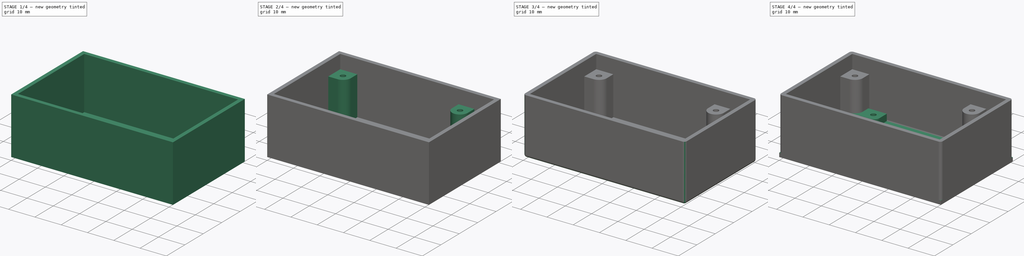
[diagram: build sequence overview — one tinted view per stage of 4, left to right]
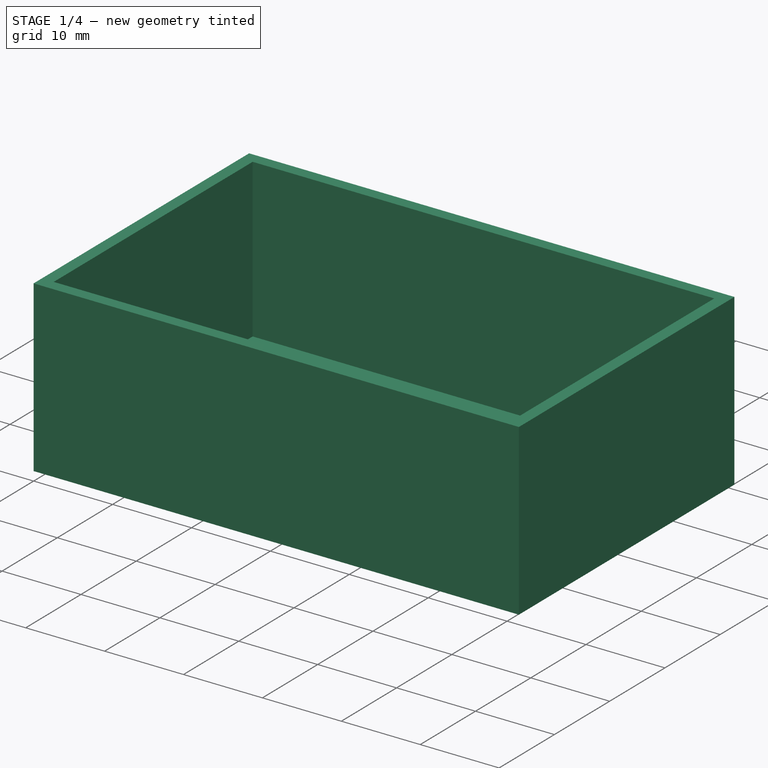
[diagram: stage 1 of 4 — iso view after this stage's code; geometry added in this stage tinted green]
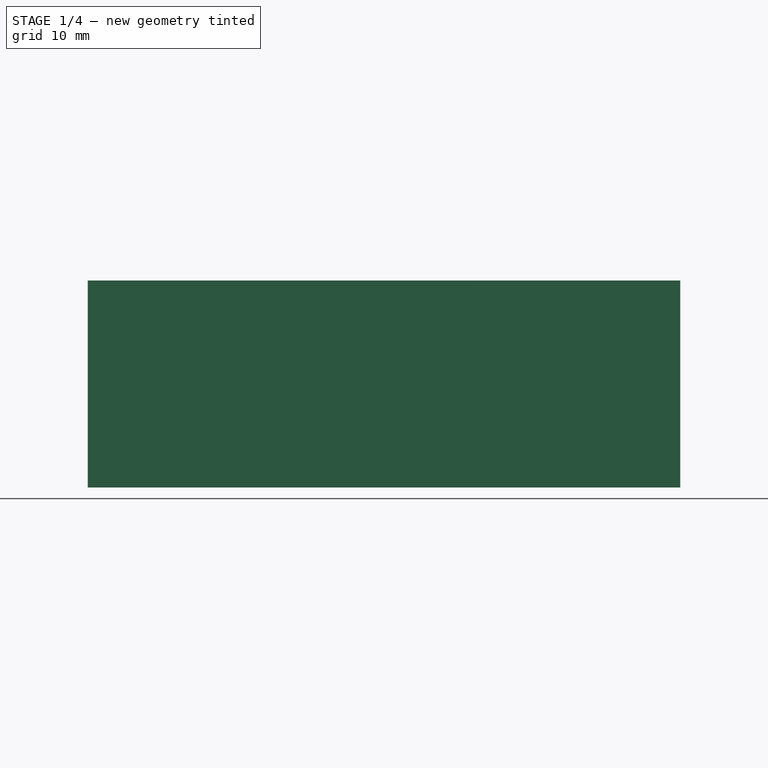
[diagram: stage 1 of 4 — front view after this stage's code; geometry added in this stage tinted green]
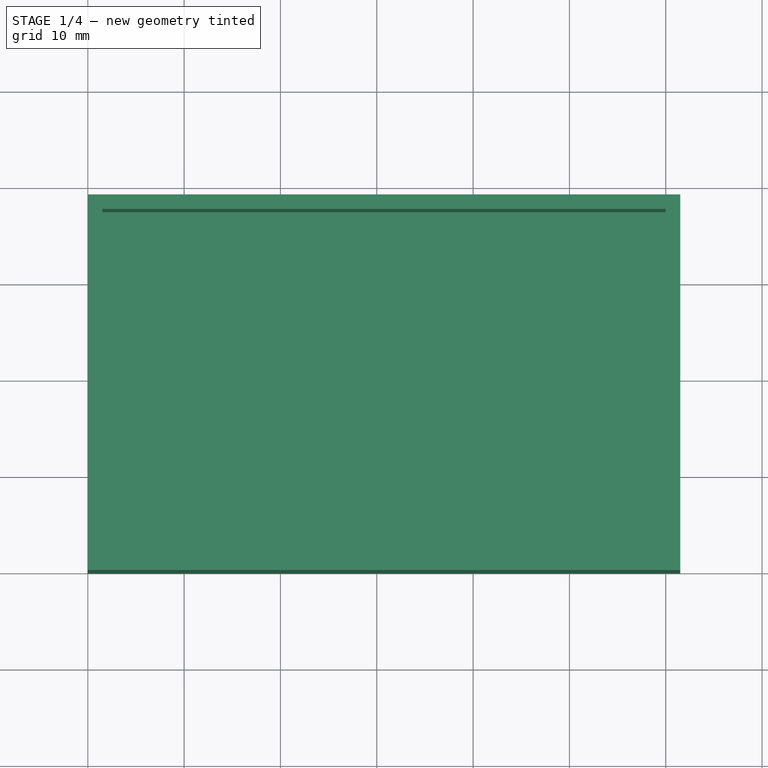
[diagram: stage 1 of 4 — top view after this stage's code; geometry added in this stage tinted green]
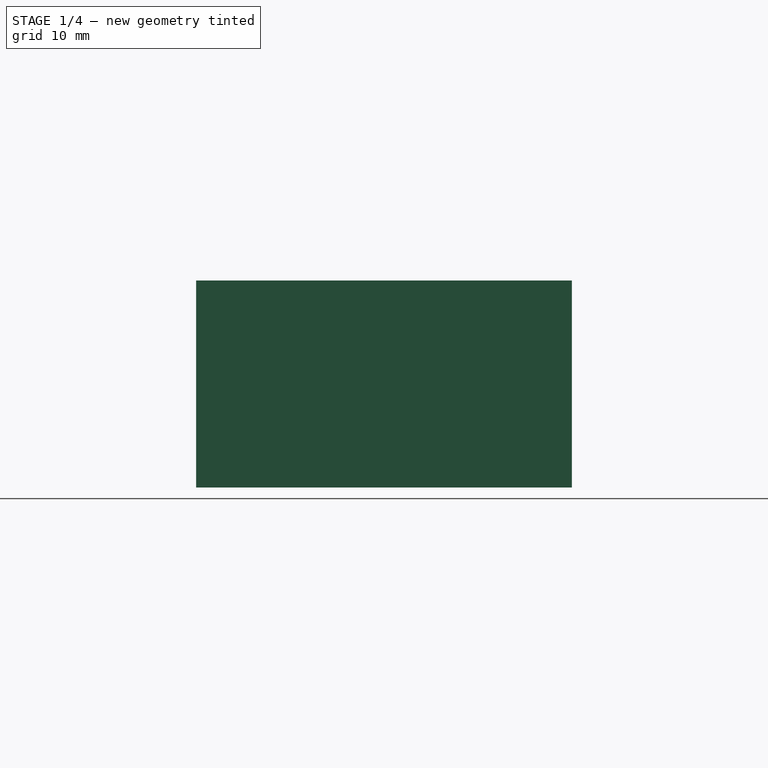
[diagram: stage 1 of 4 — right view after this stage's code; geometry added in this stage tinted green]
FCSTD DOCUMENT  (FreeCAD 0.17R13519 (Git))
Label: MH-Z14A-case-top
License: All rights reserved
LicenseURL: http://en.wikipedia.org/wiki/All_rights_reserved
objects: Sketcher::SketchObject×5, PartDesign::Pad×3, PartDesign::Pocket×2, PartDesign::LinearPattern×2, PartDesign::Fillet×2, Spreadsheet::Sheet×1, Part::FeaturePython×1, PartDesign::MultiTransform×1, PartDesign::Body×1
note: 22 computed .brp shape members not serialized (recipe doc carries the construction recipe); baked Part::Feature solids carry a one-line shape summary decoded from their .brp

FEATURE [Sketcher::SketchObject] Sketch
  MapMode = 5
  Support = -> [XY_Plane]
  expr: Constraints[10] = vals.board_h + 2 * vals.board_tolerance + 2 * vals.case_thickness
  expr: Constraints[9] = vals.board_w + 2 * vals.board_tolerance + 2 * vals.case_thickness
  sketch-geometry (4):
    g0: LineSegment StartX=0 StartY=0 StartZ=0 EndX=61.5 EndY=0 EndZ=0
    g1: LineSegment StartX=61.5 StartY=0 StartZ=0 EndX=61.5 EndY=39 EndZ=0
    g2: LineSegment StartX=61.5 StartY=39 StartZ=0 EndX=0 EndY=39 EndZ=0
    g3: LineSegment StartX=0 StartY=39 StartZ=0 EndX=0 EndY=0 EndZ=0
  constraints (11):
    c: Coincident(g0,g1)
    c: Coincident(g1,g2)
    c: Coincident(g2,g3)
    c: Coincident(g3,g0)
    c: Horizontal(g0)
    c: Horizontal(g2)
    c: Vertical(g1)
    c: Vertical(g3)
    c: Coincident(g0,g-1)
    c: DistanceX(g0,g0) = 61.5
    c: DistanceY(g1,g1) = 39
FEATURE [PartDesign::Pad] Pad
  Length = 1.5
  Length2 = 100
  Profile = -> Sketch
  Type = 0
  expr: Length = vals.case_thickness
FEATURE [Sketcher::SketchObject] Sketch001
  ExternalGeometry = -> [Pad]
  MapMode = 5
  Placement = pos=(0,0,1.5) rot=(0,0,1;0rad)
  Support = -> [Pad]
  expr: Constraints[11] = vals.case_thickness
  expr: Constraints[10] = vals.case_thickness
  expr: Constraints[9] = vals.case_thickness
  expr: Constraints[8] = vals.case_thickness
  sketch-geometry (8):
    g0: LineSegment StartX=1.5 StartY=37.5 StartZ=0 EndX=60 EndY=37.5 EndZ=0
    g1: LineSegment StartX=60 StartY=37.5 StartZ=0 EndX=60 EndY=1.5 EndZ=0
    g2: LineSegment StartX=60 StartY=1.5 StartZ=0 EndX=1.5 EndY=1.5 EndZ=0
    g3: LineSegment StartX=1.5 StartY=1.5 StartZ=0 EndX=1.5 EndY=37.5 EndZ=0
    g4: LineSegment StartX=0 StartY=0 StartZ=0 EndX=61.5 EndY=0 EndZ=0
    g5: LineSegment StartX=61.5 StartY=0 StartZ=0 EndX=61.5 EndY=39 EndZ=0
    g6: LineSegment StartX=61.5 StartY=39 StartZ=0 EndX=0 EndY=39 EndZ=0
    g7: LineSegment StartX=0 StartY=39 StartZ=0 EndX=0 EndY=0 EndZ=0
  constraints (22):
    c: Coincident(g0,g1)
    c: Coincident(g1,g2)
    c: Coincident(g2,g3)
    c: Coincident(g3,g0)
    c: Horizontal(g0)
    c: Horizontal(g2)
    c: Vertical(g1)
    c: Vertical(g3)
    c: DistanceX(g-1,g2) = 1.5
    c: DistanceX(g0,g-3) = 1.5
    c: DistanceY(g-1,g2) = 1.5
    c: DistanceY(g0,g-3) = 1.5
    c: Coincident(g4,g5)
    c: Coincident(g5,g6)
    c: Coincident(g6,g7)
    c: Coincident(g7,g4)
    c: Horizontal(g4)
    c: Horizontal(g6)
    c: Vertical(g5)
    c: Vertical(g7)
    c: Coincident(g4,g-1)
    c: Coincident(g5,g-3)
FEATURE [PartDesign::Pad] Pad001
  BaseFeature = -> Pad
  Length = 20
  Length2 = 100
  Profile = -> Sketch001
  Type = 0
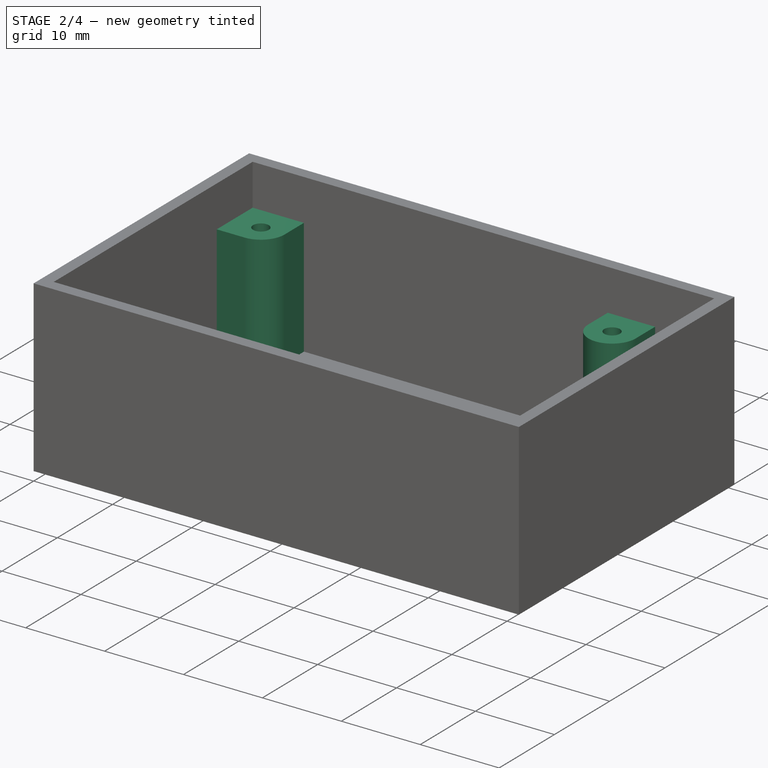
[diagram: stage 2 of 4 — iso view after this stage's code; geometry added in this stage tinted green]
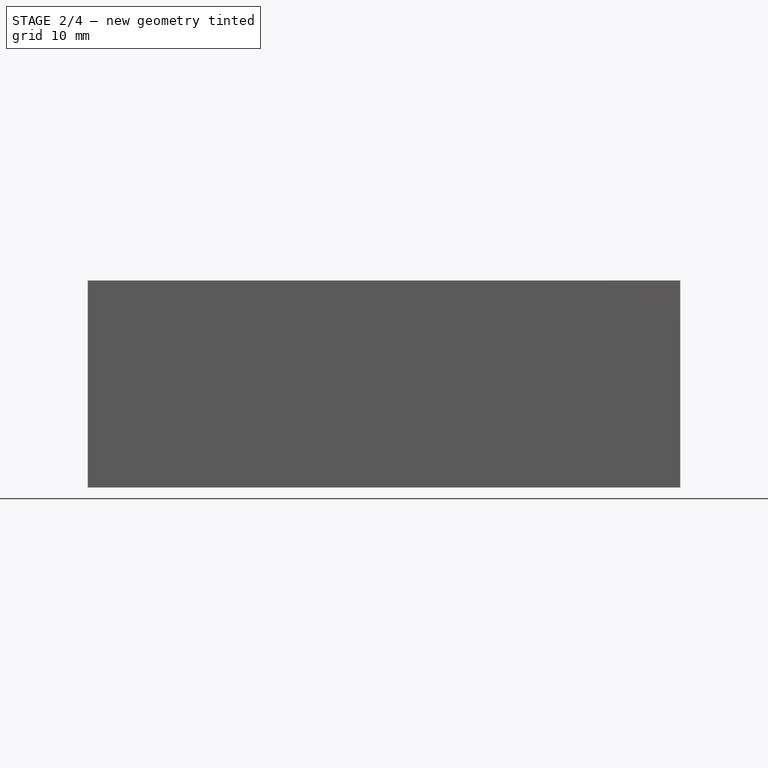
[diagram: stage 2 of 4 — front view after this stage's code; geometry added in this stage tinted green]
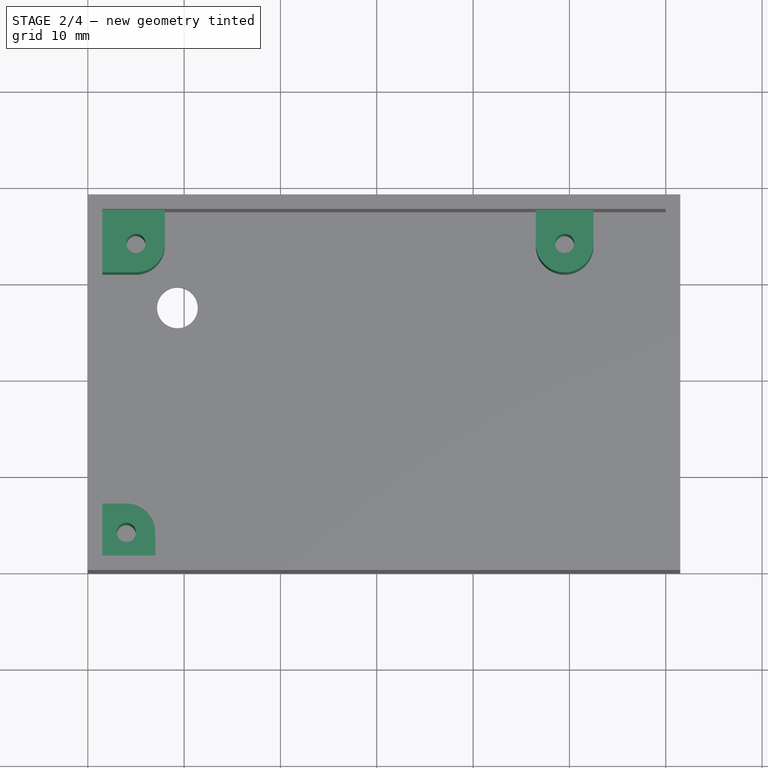
[diagram: stage 2 of 4 — top view after this stage's code; geometry added in this stage tinted green]
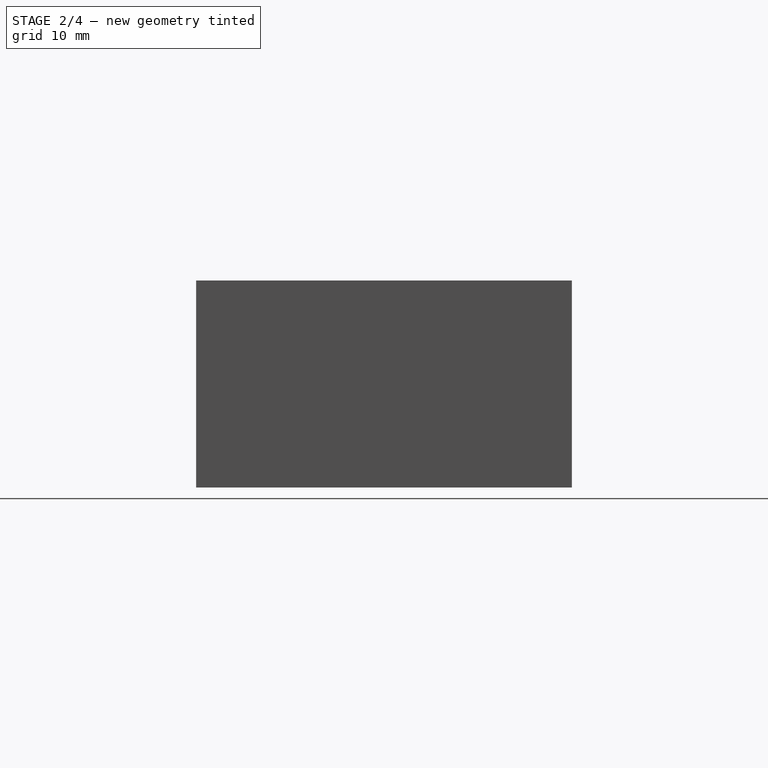
[diagram: stage 2 of 4 — right view after this stage's code; geometry added in this stage tinted green]
FEATURE [Sketcher::SketchObject] Sketch002
  ExternalGeometry = -> [Pad001]
  MapMode = 5
  Placement = pos=(0,0,1.5) rot=(0,0,1;0rad)
  Support = -> [Pad001]
  expr: Constraints[7] = vals.board_tolerance
  expr: Constraints[8] = vals.board_tolerance
  expr: Constraints[9] = vals.board_h
  expr: Constraints[10] = vals.board_w
  sketch-geometry (21):
    g0: LineSegment [constr] StartX=2 StartY=37 StartZ=0 EndX=59.5 EndY=37 EndZ=0
    g1: LineSegment [constr] StartX=59.5 StartY=37 StartZ=0 EndX=59.5 EndY=2 EndZ=0
    g2: LineSegment [constr] StartX=59.5 StartY=2 StartZ=0 EndX=2 EndY=2 EndZ=0
    g3: LineSegment [constr] StartX=2 StartY=2 StartZ=0 EndX=2 EndY=37 EndZ=0
    g4: Circle CenterX=49.5 CenterY=34 CenterZ=0 NormalX=0 NormalY=0 NormalZ=1 AngleXU=0 Radius=1
    g5: Circle CenterX=5 CenterY=34 CenterZ=0 NormalX=0 NormalY=0 NormalZ=1 AngleXU=0 Radius=1
    g6: Circle CenterX=4 CenterY=4 CenterZ=0 NormalX=0 NormalY=0 NormalZ=1 AngleXU=0 Radius=1
    g7: ArcOfCircle CenterX=49.5 CenterY=34 CenterZ=0 NormalX=0 NormalY=0 NormalZ=1 AngleXU=0 Radius=3 StartAngle=3.14159 EndAngle=6.28319
    g8: LineSegment StartX=46.5 StartY=34 StartZ=0 EndX=46.5 EndY=37.5 EndZ=0
    g9: LineSegment StartX=52.5 StartY=34 StartZ=0 EndX=52.5 EndY=37.5 EndZ=0
    g10: LineSegment StartX=46.5 StartY=37.5 StartZ=0 EndX=52.5 EndY=37.5 EndZ=0
    g11: ArcOfCircle CenterX=5 CenterY=34 CenterZ=0 NormalX=0 NormalY=0 NormalZ=1 AngleXU=0 Radius=3 StartAngle=4.71239 EndAngle=6.28319
    g12: LineSegment StartX=8 StartY=34 StartZ=0 EndX=8 EndY=37.5 EndZ=0
    g13: LineSegment StartX=5 StartY=31 StartZ=0 EndX=1.5 EndY=31 EndZ=0
    g14: LineSegment StartX=1.5 StartY=31 StartZ=0 EndX=1.5 EndY=37.5 EndZ=0
    g15: LineSegment StartX=1.5 StartY=37.5 StartZ=0 EndX=8 EndY=37.5 EndZ=0
    g16: ArcOfCircle CenterX=4 CenterY=4 CenterZ=0 NormalX=0 NormalY=0 NormalZ=1 AngleXU=0 Radius=3 StartAngle=0 EndAngle=1.5708
    g17: LineSegment StartX=7 StartY=4 StartZ=0 EndX=7 EndY=1.5 EndZ=0
    g18: LineSegment StartX=4 StartY=7 StartZ=0 EndX=1.5 EndY=7 EndZ=0
    g19: LineSegment StartX=1.5 StartY=7 StartZ=0 EndX=1.5 EndY=1.5 EndZ=0
    g20: LineSegment StartX=1.5 StartY=1.5 StartZ=0 EndX=7 EndY=1.5 EndZ=0
  constraints (60):
    c: Coincident(g0,g1)
    c: Coincident(g1,g2)
    c: Coincident(g3,g0)
    c: Horizontal(g0)
    c: Horizontal(g2)
    c: Vertical(g1)
    c: Vertical(g3)
    c: DistanceY(g-3,g2) = 0.5
    c: DistanceX(g-3,g2) = 0.5
    c: DistanceY(g3,g3) = 35
    c: DistanceX(g2,g2) = 57.5
    c: DistanceX(g4,g0) = 10
    c: DistanceY(g4,g0) = 3
    c: Radius(g4) = 1  'bolt_radius'
    c: Equal(g4,g5) = 1  'bolt_radius'
    c: Equal(g4,g6) = 1  'bolt_radius'
    c: Coincident(g7,g4)
    c: Coincident(g8,g7)
    c: Vertical(g8)
    c: Coincident(g9,g7)
    c: Vertical(g9)
    c: Coincident(g10,g8)
    c: Coincident(g10,g9)
    c: Equal(g9,g8)
    c: DistanceX(g7,g4) = 3
    c: PointOnObject(g8,g-4)
    c: PointOnObject(g9,g-4)
    c: DistanceY(g7,g0) = 3
    c: Coincident(g11,g5)
    c: Coincident(g12,g11)
    c: PointOnObject(g12,g-4)
    c: Vertical(g12)
    c: Coincident(g13,g11)
    c: PointOnObject(g13,g-3)
    c: Horizontal(g13)
    c: DistanceX(g5,g11) = 0
    c: DistanceX(g0,g5) = 3
    c: DistanceY(g5,g0) = 3
    c: Radius(g11) = 3
    c: Coincident(g14,g13)
    c: Coincident(g14,g-4)
    c: Coincident(g15,g14)
    c: Coincident(g15,g12)
    c: DistanceY(g11,g5) = 0
    c: DistanceX(g6) = 4
    c: DistanceY(g6) = 4
    c: Coincident(g16,g6)
    c: Coincident(g17,g16)
    c: Vertical(g17)
    c: Horizontal(g18)
    c: Coincident(g18,g16)
    c: DistanceX(g6,g16) = 0
    c: Angle(g16) = 1.5708
    c: Radius(g16) = 3
    c: Coincident(g19,g18)
    c: Vertical(g19)
    c: Coincident(g20,g19)
    c: Coincident(g20,g17)
    c: Coincident(g19,g-3)
    c: Horizontal(g20)
FEATURE [PartDesign::Pad] Pad002
  BaseFeature = -> Pad001
  Length = 14.75
  Length2 = 100
  Profile = -> Sketch002
  Type = 0
  expr: Length = 20 - (0.75 + 2.5 + 2)
FEATURE [Sketcher::SketchObject] Sketch003
  MapMode = 5
  Placement = pos=(0,0,16.25) rot=(0,0,1;0rad)
  Support = -> [Pad002]
  sketch-geometry (1):
    g0: Circle CenterX=9.30088 CenterY=27.5679 CenterZ=0 NormalX=0 NormalY=0 NormalZ=1 AngleXU=0 Radius=2.1105
FEATURE [PartDesign::Pocket] Pocket
  BaseFeature = -> Pad002
  Length = 5
  Length2 = 100
  Midplane = true
  Profile = -> Sketch003
  Type = 1
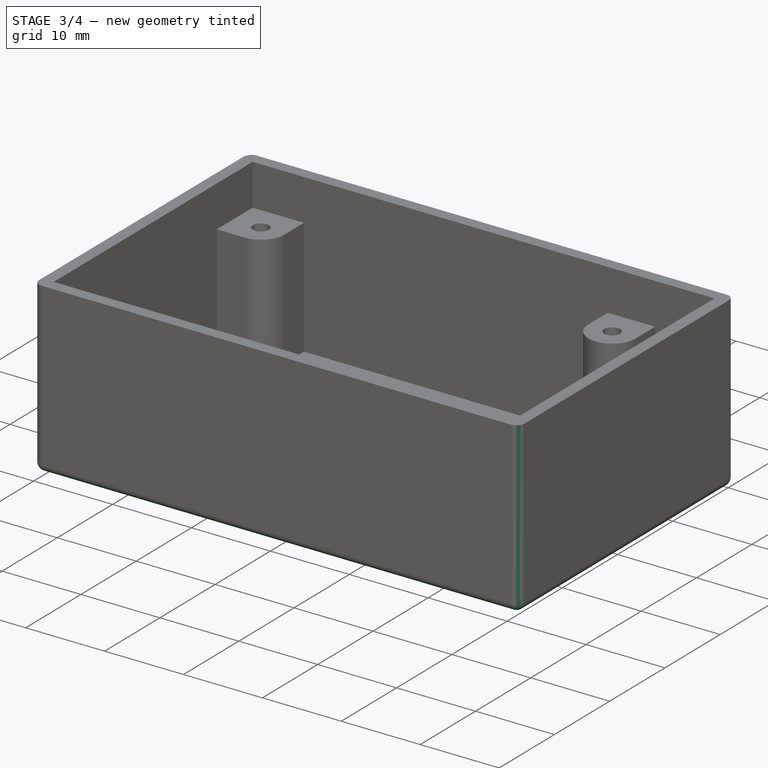
[diagram: stage 3 of 4 — iso view after this stage's code; geometry added in this stage tinted green]
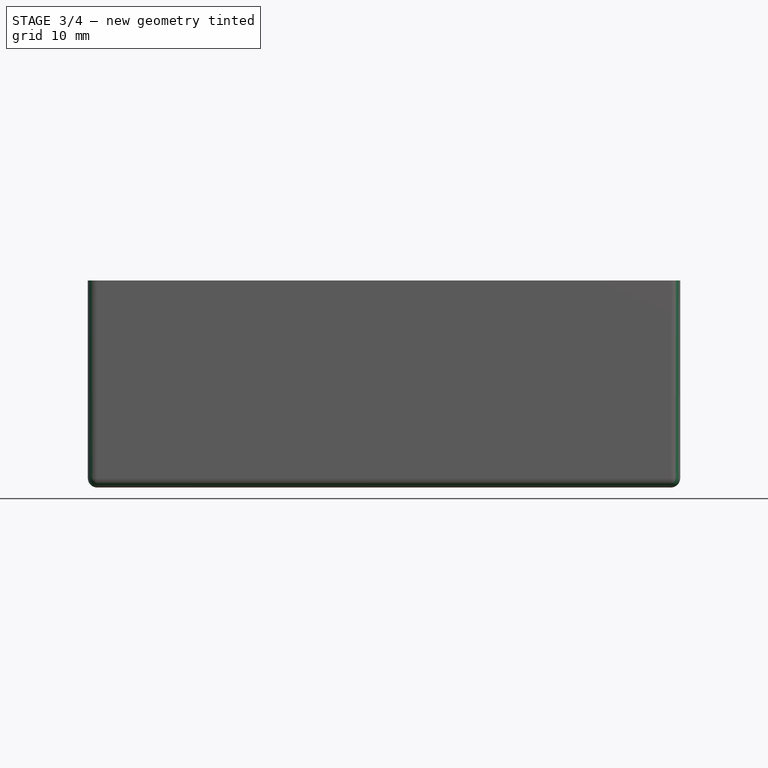
[diagram: stage 3 of 4 — front view after this stage's code; geometry added in this stage tinted green]
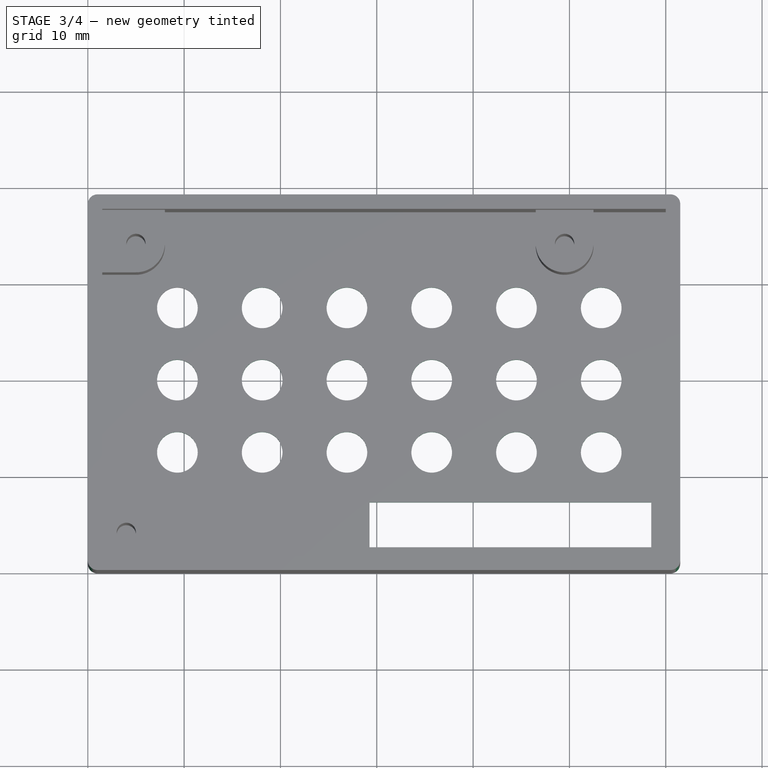
[diagram: stage 3 of 4 — top view after this stage's code; geometry added in this stage tinted green]
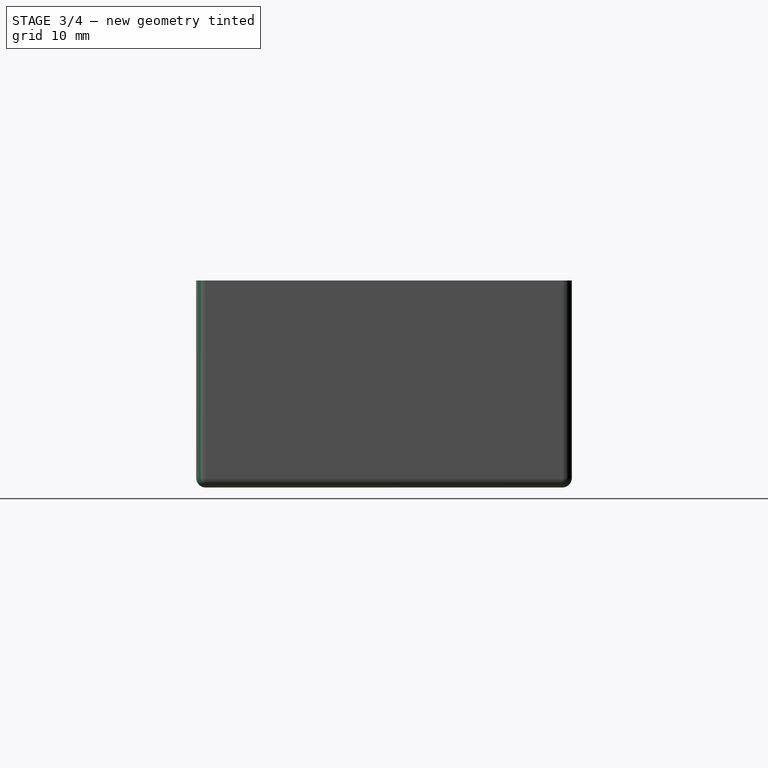
[diagram: stage 3 of 4 — right view after this stage's code; geometry added in this stage tinted green]
FEATURE [PartDesign::LinearPattern] LinearPattern
  Direction = -> X_Axis
  Length = 44
  Occurrences = 6
FEATURE [PartDesign::LinearPattern] LinearPattern001
  Direction = -> Y_Axis
  Length = 15
  Occurrences = 3
  Reversed = true
FEATURE [PartDesign::MultiTransform] MultiTransform
  BaseFeature = -> Pocket
  Originals = -> [Pocket]
  Transformations = -> [LinearPattern,LinearPattern001]
FEATURE [Sketcher::SketchObject] Sketch004
  MapMode = 5
  Placement = pos=(0,0,1.5) rot=(0,0,1;0rad)
  Support = -> [MultiTransform]
  sketch-geometry (4):
    g0: LineSegment StartX=29.2488 StartY=7.37576 StartZ=0 EndX=58.4896 EndY=7.37576 EndZ=0
    g1: LineSegment StartX=58.4896 StartY=7.37576 StartZ=0 EndX=58.4896 EndY=2.71475 EndZ=0
    g2: LineSegment StartX=58.4896 StartY=2.71475 StartZ=0 EndX=29.2488 EndY=2.71475 EndZ=0
    g3: LineSegment StartX=29.2488 StartY=2.71475 StartZ=0 EndX=29.2488 EndY=7.37576 EndZ=0
  constraints (8):
    c: Coincident(g0,g1)
    c: Coincident(g1,g2)
    c: Coincident(g2,g3)
    c: Coincident(g3,g0)
    c: Horizontal(g0)
    c: Horizontal(g2)
    c: Vertical(g1)
    c: Vertical(g3)
FEATURE [PartDesign::Pocket] Pocket001
  BaseFeature = -> MultiTransform
  Length = 5
  Length2 = 100
  Profile = -> Sketch004
  Type = 0
FEATURE [PartDesign::Fillet] Fillet
  Base = -> Pocket001 [Edge27,Edge79,Edge29,Edge81,Edge33,Edge85,Edge82,Edge30,Edge2,Edge4,Edge3,Edge1]
  BaseFeature = -> Pocket001
  Radius = 1
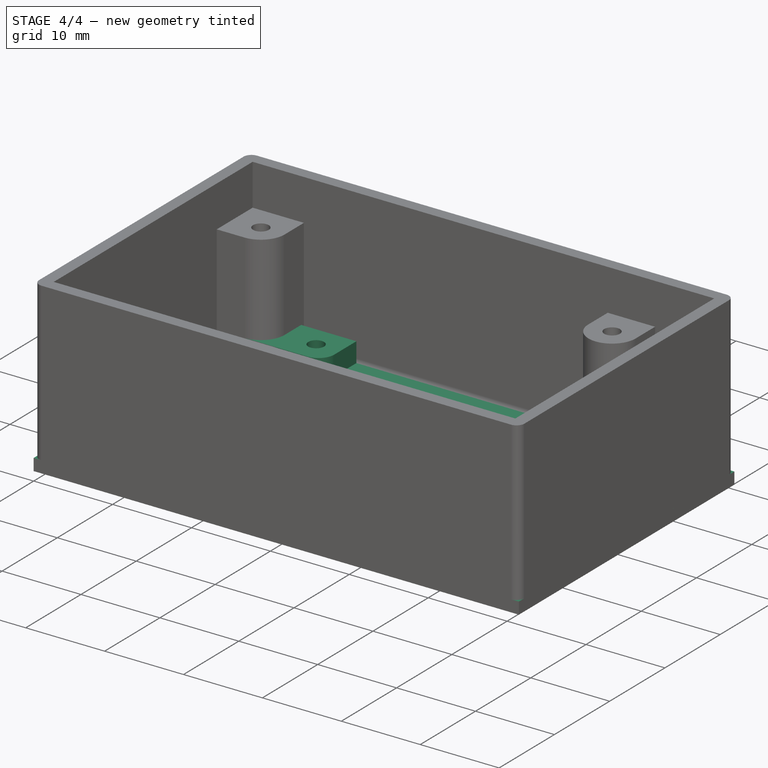
[diagram: stage 4 of 4 — iso view after this stage's code; geometry added in this stage tinted green]
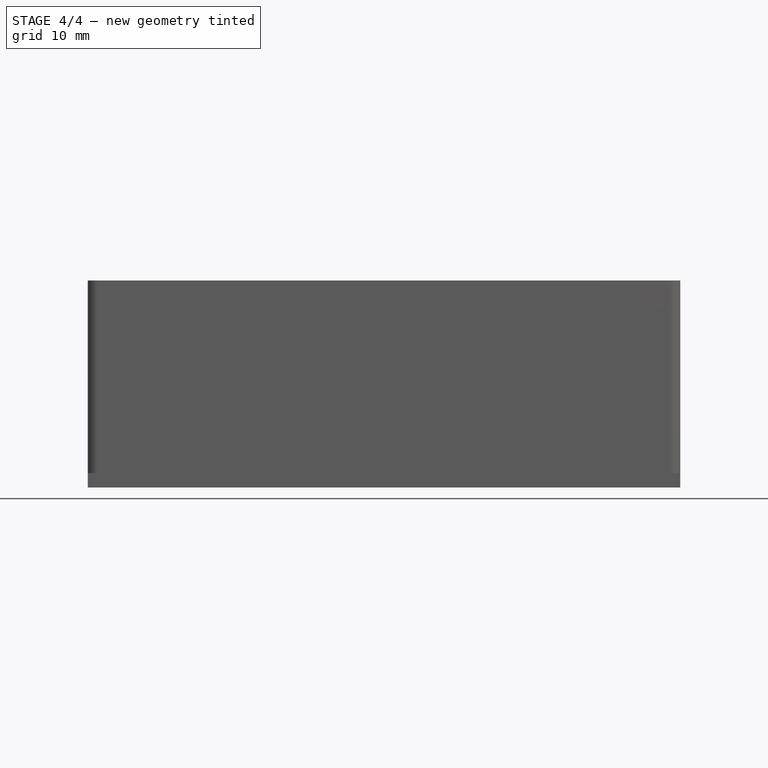
[diagram: stage 4 of 4 — front view after this stage's code; geometry added in this stage tinted green]
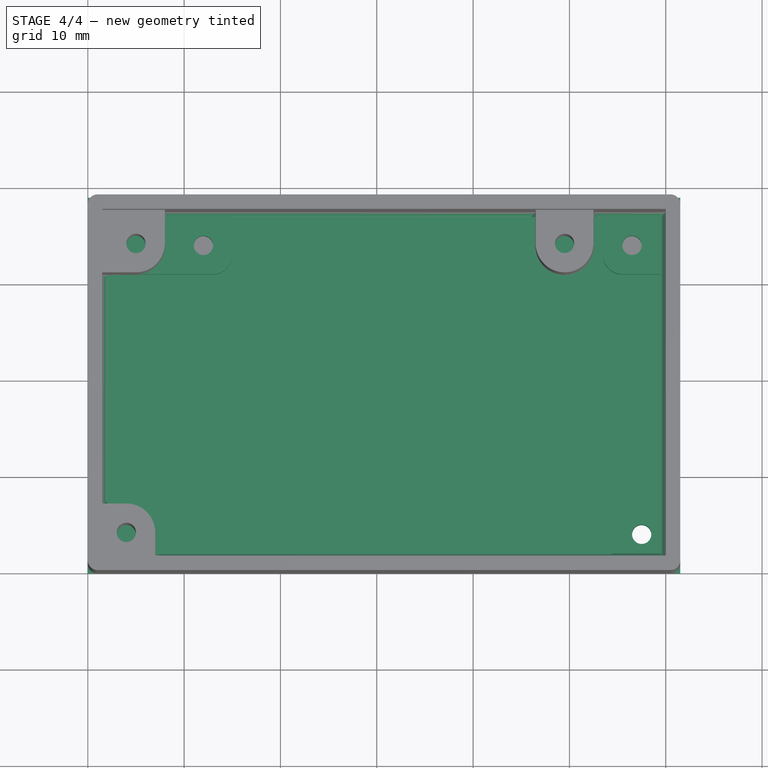
[diagram: stage 4 of 4 — top view after this stage's code; geometry added in this stage tinted green]
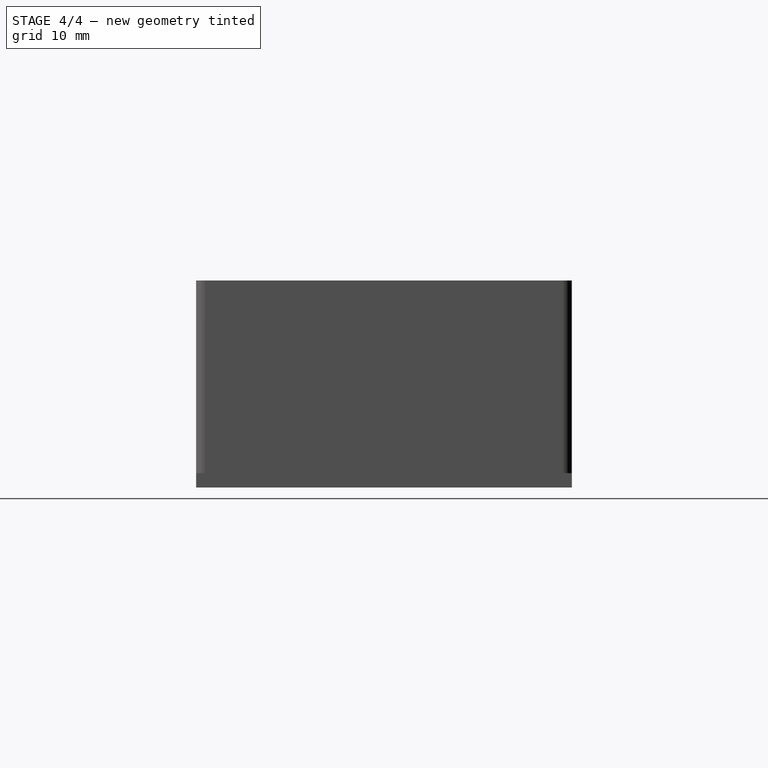
[diagram: stage 4 of 4 — right view after this stage's code; geometry added in this stage tinted green]
FEATURE [Spreadsheet::Sheet] Spreadsheet  label="vals"
  cells = A1=board_w; B1(board_w)=57.5; A2=board_h; B2(board_h)=35; A3=board_tolerance; B3(board_tolerance)=0.5; A4=case_lattice_w; A5=case_thickness; B5(case_thickness)=1.5
FEATURE [Part::FeaturePython] MH_Z14A_case_01  # a2plus imported part (geometry in sourceFile) (typed FeaturePython)
  fixedPosition = true
  sourceFile = <userpath>/WORK/GRG/remoteSensors/MH-Z14A-case.fcstd
  timeLastImport = 1.52581e+09
  updateColors = true
FEATURE [PartDesign::Fillet] Fillet001
  Base = -> Fillet [Edge114,Edge112,Edge110,Edge108,Edge106,Edge104,Edge103,Edge105,Edge107,Edge109,Edge111,Edge113,Edge115]
  BaseFeature = -> Fillet
  Radius = 1
FEATURE [PartDesign::Body] Body
  Group = -> [Sketch,Pad,Sketch001,Pad001,Sketch002,Pad002,Sketch003,Pocket,MultiTransform,LinearPattern,LinearPattern001,Sketch004,Pocket001,Fillet,Fillet001]
  Origin = -> Origin
  Tip = -> Fillet001
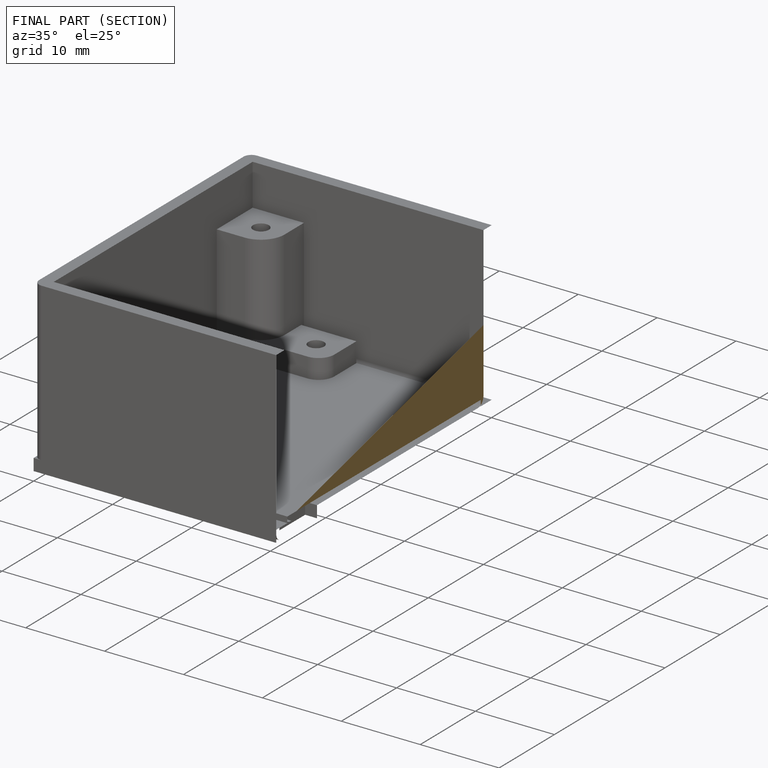
[diagram: finished part — half-section view (interior)]
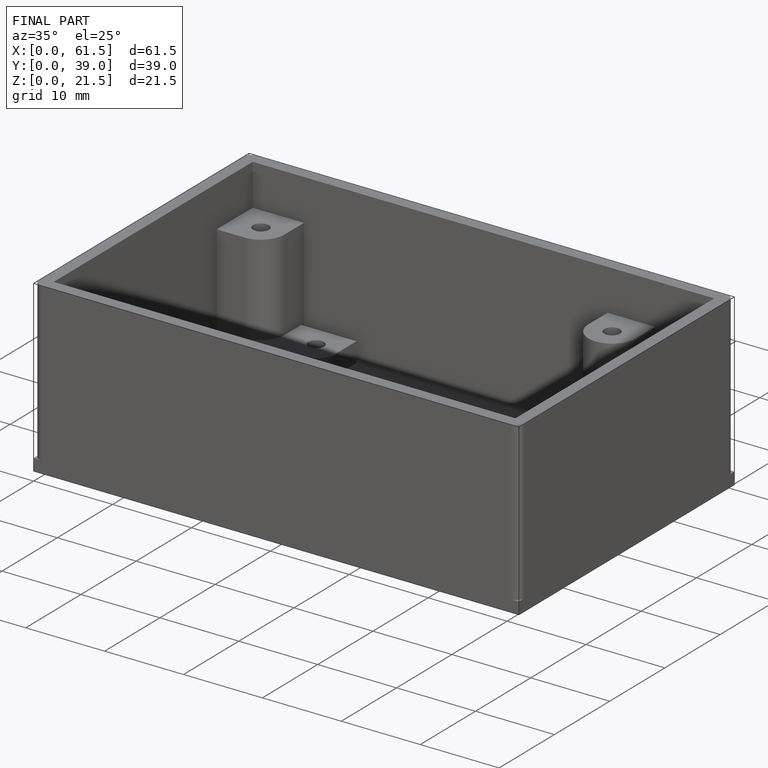
[diagram: finished part — iso view with bounding-box wireframe]
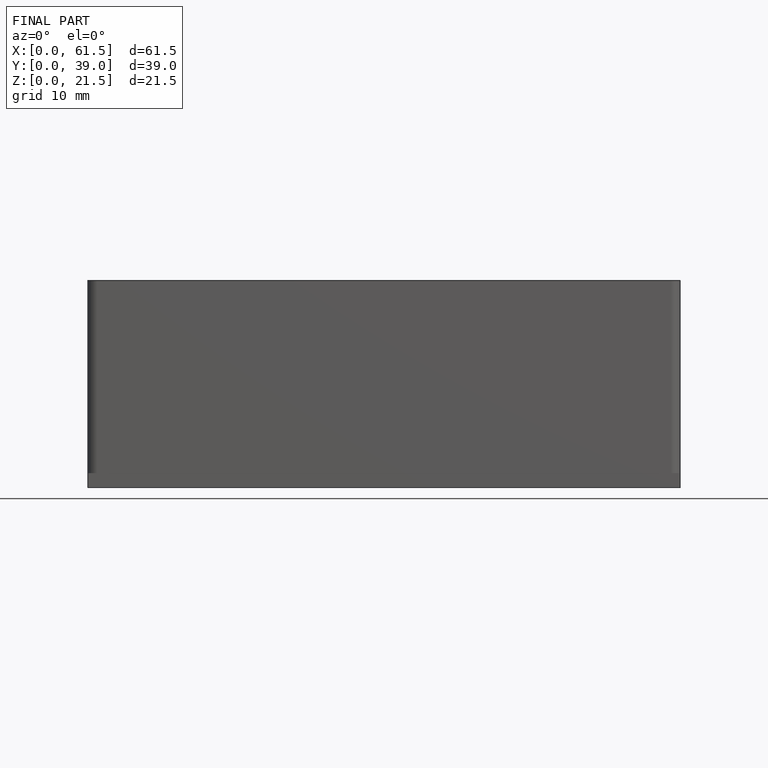
[diagram: finished part — front view with bounding-box wireframe]
